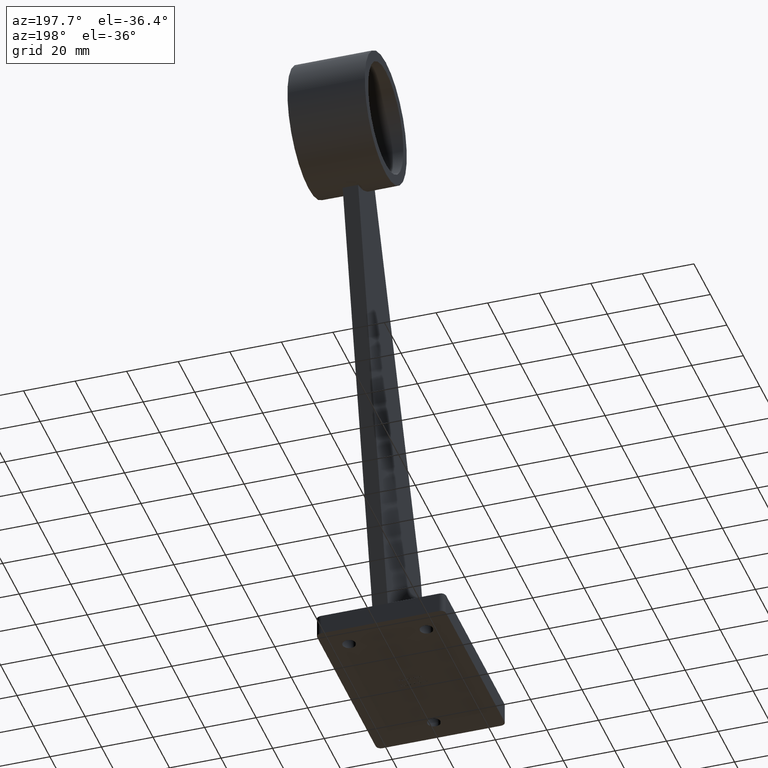
[diagram: clean part render]
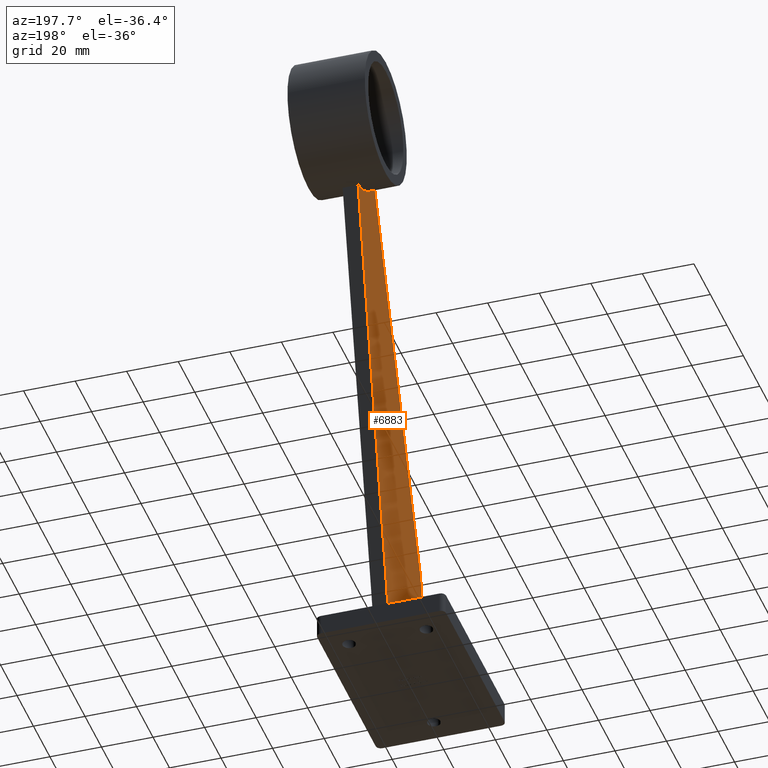
[diagram: same view with one face highlighted and labeled with its STEP entity id]
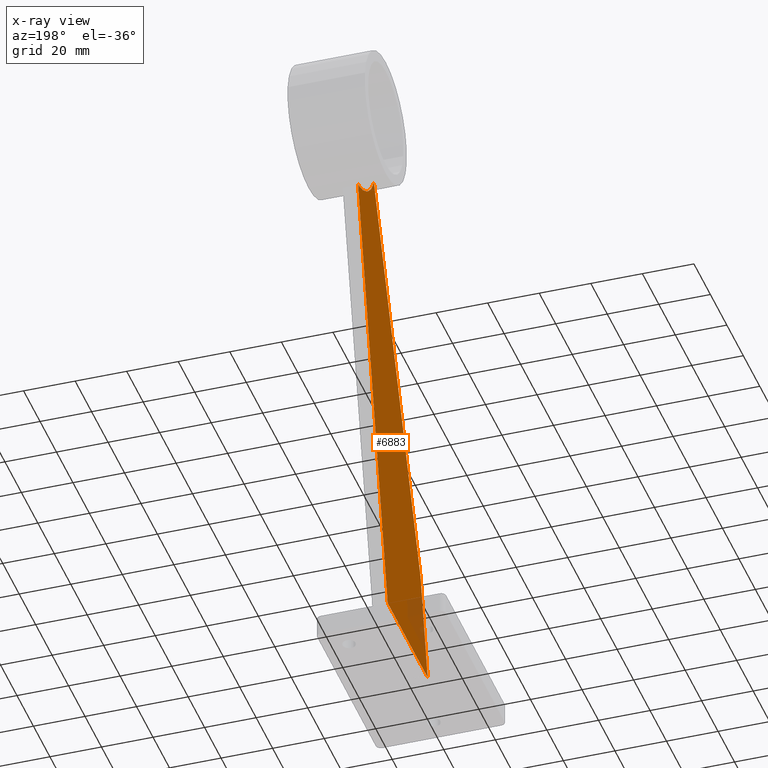
[diagram: x-ray of the same camera — body ghosted, the highlighted face saturated]
A machine part, auxiliary view. The second image highlights one B-rep face of the part: STEP entity #6883.
The next image is the same camera in x-ray: the body ghosted, the highlighted face saturated — about 5% of this face is hidden behind the body in this view.
In plain terms, the highlighted planar face has unit normal (1, 0, 0).
Its self-contained STEP definition (entity closure, byte-faithful):
#153 = VECTOR ( 'NONE', #5396, 1000.000000000000000 ) ;
#170 = VECTOR ( 'NONE', #673, 1000.000000000000000 ) ;
#379 = CARTESIAN_POINT ( 'NONE',  ( -3.000000000000000000, -18.63488594879224891, 7.481429264432456705 ) ) ;
#673 = DIRECTION ( 'NONE',  ( 0.000000000000000000, -1.000000000000000000, 0.000000000000000000 ) ) ;
#780 = ORIENTED_EDGE ( 'NONE', *, *, #8668, .T. ) ;
#921 = DIRECTION ( 'NONE',  ( 0.000000000000000000, 0.000000000000000000, -1.000000000000000000 ) ) ;
#1244 = DIRECTION ( 'NONE',  ( 0.000000000000000000, 0.000000000000000000, -1.000000000000000000 ) ) ;
#1525 = VERTEX_POINT ( 'NONE', #14377 ) ;
#2029 = EDGE_CURVE ( 'NONE', #14098, #4111, #3609, .T. ) ;
#2483 = EDGE_CURVE ( 'NONE', #14098, #1525, #9879, .T. ) ;
#2487 = ORIENTED_EDGE ( 'NONE', *, *, #13899, .T. ) ;
#2530 = ORIENTED_EDGE ( 'NONE', *, *, #9033, .T. ) ;
#3515 = CARTESIAN_POINT ( 'NONE',  ( -3.000000000000000000, 0.000000000000000000, 0.000000000000000000 ) ) ;
#3609 = LINE ( 'NONE', #9361, #10428 ) ;
#4111 = VERTEX_POINT ( 'NONE', #6805 ) ;
#4171 = CARTESIAN_POINT ( 'NONE',  ( -3.000000000000000000, 37.49999999999999289, 8.000000000000001776 ) ) ;
#5396 = DIRECTION ( 'NONE',  ( 0.000000000000000000, 0.2109506823000734665, 0.9774967056911922914 ) ) ;
#5465 = ORIENTED_EDGE ( 'NONE', *, *, #2483, .T. ) ;
#5888 = AXIS2_PLACEMENT_3D ( 'NONE', #12547, #14787, #921 ) ;
#6235 = LINE ( 'NONE', #6755, #153 ) ;
#6755 = CARTESIAN_POINT ( 'NONE',  ( -3.000000000000000000, -12.16012668210152015, 2.624241090030875245 ) ) ;
#6805 = CARTESIAN_POINT ( 'NONE',  ( -3.000000000000000000, 73.50000000000000000, 174.8156794810739996 ) ) ;
#6871 = PLANE ( 'NONE',  #12696 ) ;
#6883 = ADVANCED_FACE ( 'NONE', ( #7930 ), #6871, .F. ) ;
#7884 = LINE ( 'NONE', #379, #9158 ) ;
#7930 = FACE_OUTER_BOUND ( 'NONE', #8208, .T. ) ;
#8208 = EDGE_LOOP ( 'NONE', ( #2487, #9137, #5465, #2530, #780 ) ) ;
#8341 = CARTESIAN_POINT ( 'NONE',  ( -2.999999999999999112, 54.35731167978458700, 189.2917799185221952 ) ) ;
#8668 = EDGE_CURVE ( 'NONE', #9626, #11864, #7884, .T. ) ;
#9033 = EDGE_CURVE ( 'NONE', #1525, #9626, #6235, .T. ) ;
#9137 = ORIENTED_EDGE ( 'NONE', *, *, #2029, .F. ) ;
#9158 = VECTOR ( 'NONE', #10772, 1000.000000000000114 ) ;
#9361 = CARTESIAN_POINT ( 'NONE',  ( -3.000000000000000000, 34.18161408529944367, -7.376633365033234746 ) ) ;
#9452 = DIRECTION ( 'NONE',  ( 0.000000000000000000, 0.2109506823000734943, 0.9774967056911922914 ) ) ;
#9626 = VERTEX_POINT ( 'NONE', #10804 ) ;
#9839 = CARTESIAN_POINT ( 'NONE',  ( -3.000000000000000000, 0.000000000000000000, 8.000000000000000000 ) ) ;
#9879 = LINE ( 'NONE', #9839, #170 ) ;
#10428 = VECTOR ( 'NONE', #9452, 1000.000000000000000 ) ;
#10772 = DIRECTION ( 'NONE',  ( 0.000000000000000000, 0.3725698851488922214, 0.9280041382882627810 ) ) ;
#10804 = CARTESIAN_POINT ( 'NONE',  ( -3.000000000000000000, -2.367717923881523578, 48.00000000000000711 ) ) ;
#11864 = VERTEX_POINT ( 'NONE', #8341 ) ;
#12547 = CARTESIAN_POINT ( 'NONE',  ( -3.000000000000000000, 77.50000000000001421, 200.0000000000000000 ) ) ;
#12669 = DIRECTION ( 'NONE',  ( 1.000000000000000000, -0.000000000000000000, 0.000000000000000000 ) ) ;
#12696 = AXIS2_PLACEMENT_3D ( 'NONE', #3515, #12669, #1244 ) ;
#13532 = CIRCLE ( 'NONE', #5888, 25.49999999999999645 ) ;
#13899 = EDGE_CURVE ( 'NONE', #11864, #4111, #13532, .T. ) ;
#14098 = VERTEX_POINT ( 'NONE', #4171 ) ;
#14377 = CARTESIAN_POINT ( 'NONE',  ( -3.000000000000000000, -11.00000000000000355, 8.000000000000000000 ) ) ;
#14787 = DIRECTION ( 'NONE',  ( 1.000000000000000000, -0.000000000000000000, 0.000000000000000000 ) ) ;